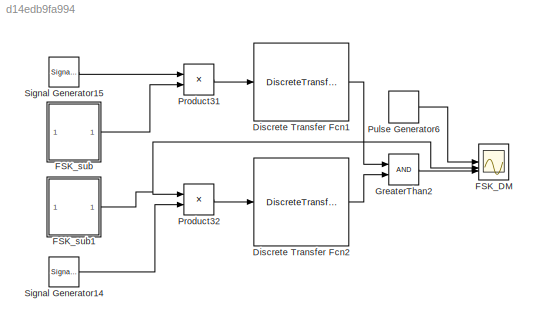
MODEL slx_d14edb9fa994
KIND model
CONFIG AbsTol = auto
CONFIG EnableMultiTasking = off
CONFIG FixedStep = auto
CONFIG MaxStep = auto
CONFIG MinStep = auto
CONFIG RelTol = 1e-3
CONFIG SampleTimeConstraint = Unconstrained
CONFIG SolverName = VariableStepAuto
CONFIG StartTime = 0.0
CONFIG StopTime = 10.0
BLOCK [DiscreteTransferFcn] Discrete Transfer Fcn1
  Denominator = [1 -0.333]
  InputPortMap = u0
  Numerator = [0.333 0.333]
BLOCK [DiscreteTransferFcn] Discrete Transfer Fcn2
  Denominator = [1 -0.333]
  InputPortMap = u0
  Numerator = [0.333 0.333]
BLOCK [Scope] FSK_DM
  Floating = off
  NumInputPorts = 3
  ScopeSpecificationString = Simulink.scopes.TimeScopeBlockCfg('CurrentConfiguration', extmgr.ConfigurationSet(extmgr.Configuration('Core','General UI',true),extmgr.Configuration('Core','Source UI',true),extmgr.Configuration('Sources','WiredSimulink',true),extmgr.Configuration('Visuals','Time Domain',true,'SerializedDisplays',{struct('MinYLimReal','-0.125','MaxYLimReal','1.125','YLabelReal','','MinYLimMag','0.00000','MaxYLimM...<+2705ch>
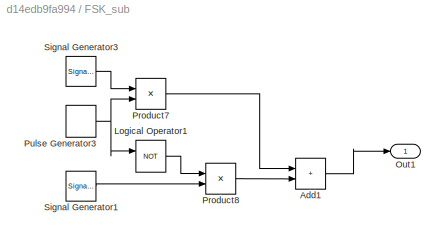
BLOCK [SubSystem] FSK_sub
BLOCK [Sum] FSK_sub/Add1
  IconShape = rectangular
BLOCK [Logic] FSK_sub/Logical Operator1
  AllPortsSameDT = off
  IconShape = distinctive
  Operator = NOT
  OutDataTypeStr = boolean
BLOCK [Outport] FSK_sub/Out1
BLOCK [Product] FSK_sub/Product7
BLOCK [Product] FSK_sub/Product8
BLOCK [DiscretePulseGenerator] FSK_sub/Pulse Generator3
  PulseType = Time based
  PulseWidth = 50
BLOCK [SignalGenerator] FSK_sub/Signal Generator1
  Frequency = 5
BLOCK [SignalGenerator] FSK_sub/Signal Generator3
  Frequency = 20
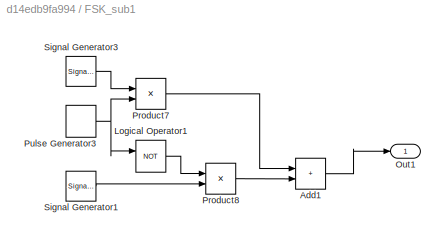
BLOCK [SubSystem] FSK_sub1
BLOCK [Sum] FSK_sub1/Add1
  IconShape = rectangular
BLOCK [Logic] FSK_sub1/Logical Operator1
  AllPortsSameDT = off
  IconShape = distinctive
  Operator = NOT
  OutDataTypeStr = boolean
BLOCK [Outport] FSK_sub1/Out1
BLOCK [Product] FSK_sub1/Product7
BLOCK [Product] FSK_sub1/Product8
BLOCK [DiscretePulseGenerator] FSK_sub1/Pulse Generator3
  PulseType = Time based
  PulseWidth = 50
BLOCK [SignalGenerator] FSK_sub1/Signal Generator1
  Frequency = 5
BLOCK [SignalGenerator] FSK_sub1/Signal Generator3
  Frequency = 20
BLOCK [RelationalOperator] GreaterThan2
  InputSameDT = off
  OutDataTypeStr = boolean
  RndMeth = Simplest
BLOCK [Product] Product31
BLOCK [Product] Product32
BLOCK [DiscretePulseGenerator] Pulse Generator6
  PulseType = Time based
  PulseWidth = 50
BLOCK [SignalGenerator] Signal Generator14
  Frequency = 5
BLOCK [SignalGenerator] Signal Generator15
  Frequency = 20
LINE Discrete Transfer Fcn1:1 -> GreaterThan2:1
LINE Discrete Transfer Fcn2:1 -> GreaterThan2:2
LINE FSK_sub/Add1:1 -> FSK_sub/Out1:1
LINE FSK_sub/Logical Operator1:1 -> FSK_sub/Product8:1
LINE FSK_sub/Product7:1 -> FSK_sub/Add1:1
LINE FSK_sub/Product8:1 -> FSK_sub/Add1:2
NET FSK_sub/Pulse Generator3:1 -> FSK_sub/Logical Operator1:1, FSK_sub/Product7:2
LINE FSK_sub/Signal Generator1:1 -> FSK_sub/Product8:2
LINE FSK_sub/Signal Generator3:1 -> FSK_sub/Product7:1
LINE FSK_sub1/Add1:1 -> FSK_sub1/Out1:1
LINE FSK_sub1/Logical Operator1:1 -> FSK_sub1/Product8:1
LINE FSK_sub1/Product7:1 -> FSK_sub1/Add1:1
LINE FSK_sub1/Product8:1 -> FSK_sub1/Add1:2
NET FSK_sub1/Pulse Generator3:1 -> FSK_sub1/Logical Operator1:1, FSK_sub1/Product7:2
LINE FSK_sub1/Signal Generator1:1 -> FSK_sub1/Product8:2
LINE FSK_sub1/Signal Generator3:1 -> FSK_sub1/Product7:1
NET FSK_sub1:1 -> FSK_DM:2, Product32:1
LINE FSK_sub:1 -> Product31:2
LINE GreaterThan2:1 -> FSK_DM:3
LINE Product31:1 -> Discrete Transfer Fcn1:1
LINE Product32:1 -> Discrete Transfer Fcn2:1
LINE Pulse Generator6:1 -> FSK_DM:1
LINE Signal Generator14:1 -> Product32:2
LINE Signal Generator15:1 -> Product31:1
note: NET lines group one-source signal fan-out (src -> all destinations, sorted); 1:1 wires keep LINE
